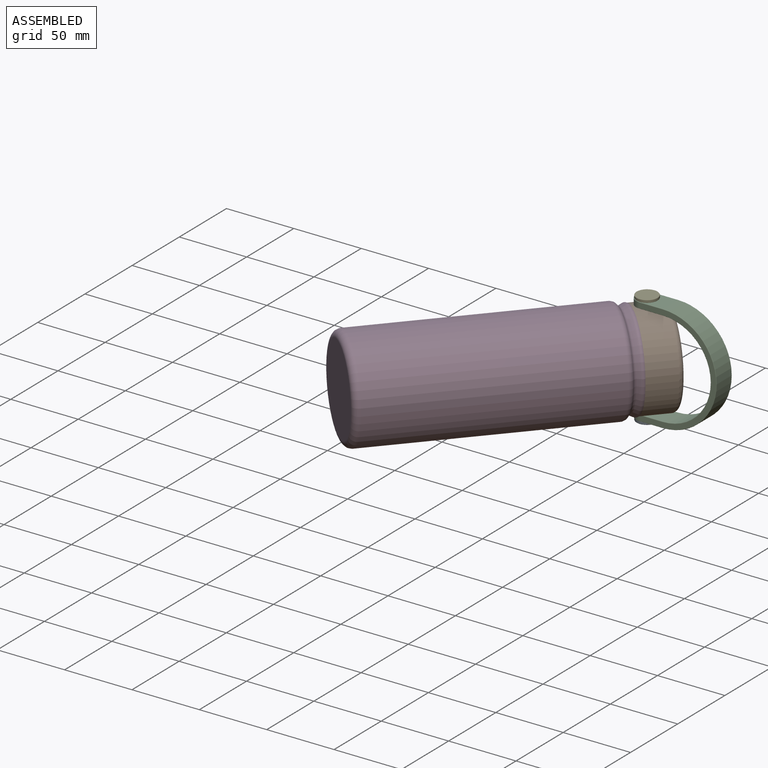
[diagram: assembled view]
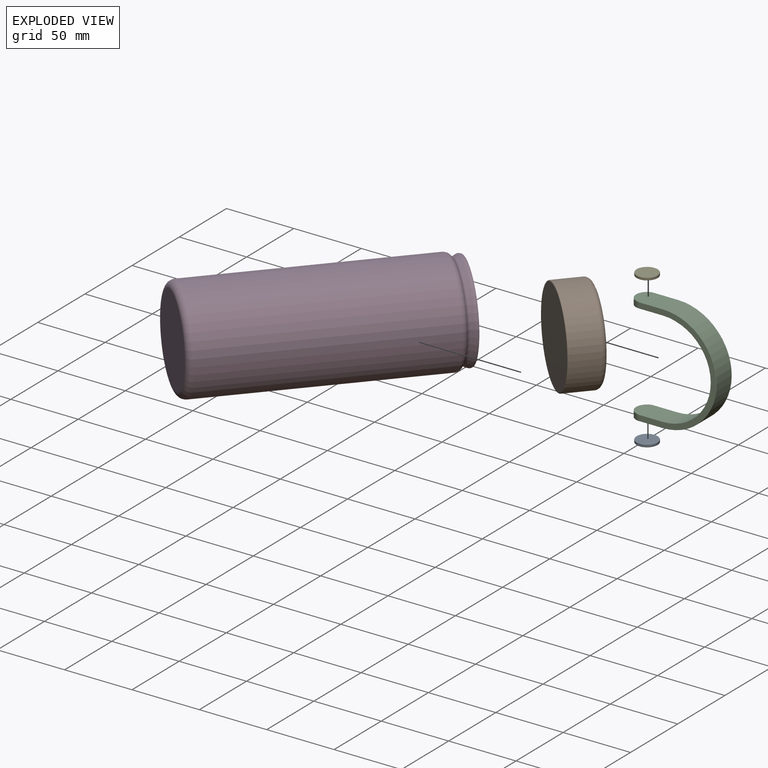
[diagram: exploded view]
GUIDED TOUR — MATED ASSEMBLY (Onshape document 536355092539ef50fb7ec794, AutoMate assembly 536355092539ef50fb7ec794_3096c0ffa2b40792f3d7c45c_285c7d49eede070ba3ad43be_default)

This assembly has 5 components, labeled P0..P4 below (a component is one placed occurrence of a part; the same part can appear more than once), held together by 3 mates. A mate is a constraint between two components; its type names the relative motion it leaves free:
  FASTENED — locks the two components together rigidly (no relative motion).
Axis/direction vectors are unit vectors and 'through' points are millimeter coordinates, both in the assembly's world frame.

MATES
  1. FASTENED "Fastened 3": P0 <-> P2, direction (0.000, 0.000, 1.000) through (-216.31, -173.49, 301.89) mm
  2. FASTENED "Fastened 1": P1 <-> P3, direction (-0.663, -0.749, 0.001) through (-220.74, -182.99, 342.62) mm
  3. FASTENED "Fastened 2": P4 <-> P2, direction (0.000, 0.000, -1.000) through (-216.31, -173.49, 381.80) mm

ASSEMBLY ORDER
  1. P2 — the base component [order verified]
  2. P1 [order verified]
  3. P3 [order verified]
  4. P4 [order verified]
  5. P0 [order verified]
Order-tag legend:
  [order verified] — this step's position reverses a verified removal order: the component was checked to insert without passing through the ones already placed.

Of the 5 components, 4 carry the full construction recipe — the FeatureScript program that regenerates the part's solid from scratch; the rest are supplied as boundary geometry only.
Each toured component is shown spotlighted twice — in the assembled view, then in the exploded view, where a leader line traces a displaced component back to its assembled socket (saturated green if recipe-attached, orange if geometry-only; every other component desaturated gray) — followed by its recipe or geometry summary and the mates that hold it.
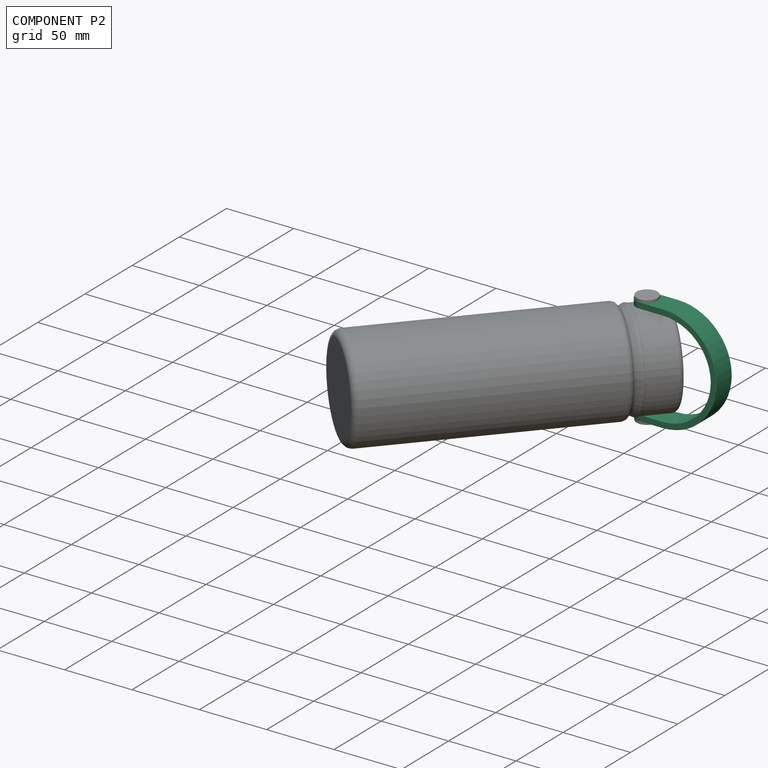
[diagram: component P2 — assembled]
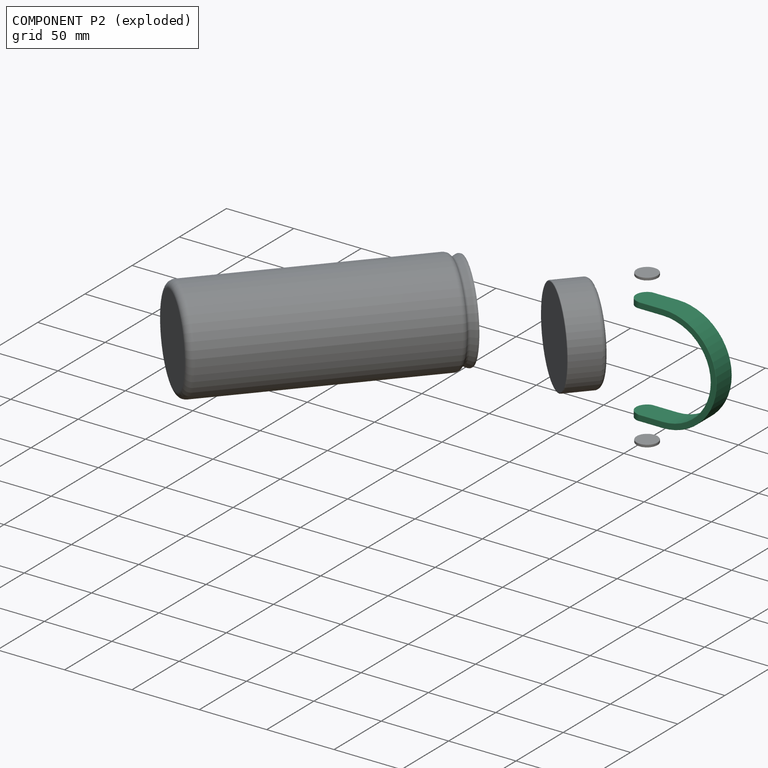
[diagram: component P2 — exploded]
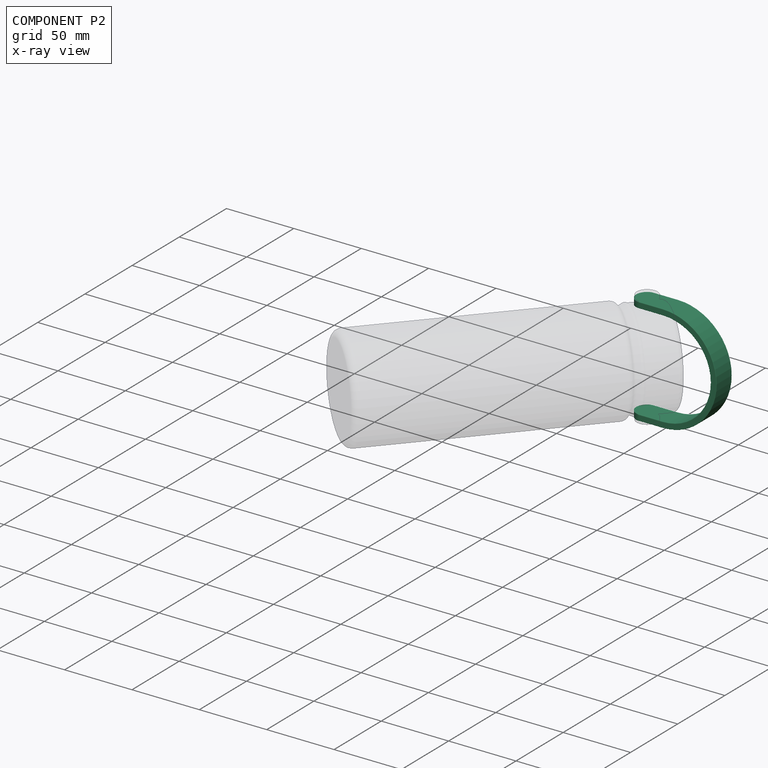
[diagram: component P2 — x-ray view]
COMPONENT P2 — recipe-attached (CADFS 00189424, mesh-verified: the recipe's output STEP matches this component's geometry to below the mesh-comparison resolution (tessellation chordal tolerance ~0.157 mm)).
Held by: FASTENED mate "Fastened 3" to P0; FASTENED mate "Fastened 2" to P4.
Construction recipe (FeatureScript — the CAD program that rebuilds this solid; sketch coordinates are in the units given by the * unit suffixes, e.g. mm):

FeatureScript 1511;
import(path : "onshape/std/geometry.fs", version : "1511.0");
import(path : "onshape/std/common.fs", version : "1511.0");
const mm = millimeter;
const VERTEX = EntityType.VERTEX;
const EDGE = EntityType.EDGE;
const FACE = EntityType.FACE;
const BODY = EntityType.BODY;
function v(x, y){return vector(x, y);}
function OD(order){return orderDisambiguation(order);}
function OSD(set){return originalSetDisambiguation(set);}
function TD(topology){return topologyDisambiguation(topology);}
function TDD(query){return trueDependencyDisambiguation(query);}
function sQuery(a, b, c) {return sketchEntityQuery(a, b, c);}

annotation { "Feature Type Name" : "Feature", "Feature Type Description" : "" }
export const myFeature = defineFeature(function(context is Context, id is Id, definition is map)
    precondition{}
    {
        {
            var Q0;
            Q0=qCreatedBy(makeId("Front.planeOp"),FACE);
            var sketch = newSketch(context, id + "F0", { "sketchPlane" : qUnion([Q0])});
            skArc(sketch, "E0", {"start": v(79.9, 0) * mm, "mid": v(39.95, 39.95) * mm, "end": v(0, 0) * mm});
            skArc(sketch, "E1", {"start": v(75.51, 0) * mm, "mid": v(39.95, 35.56) * mm, "end": v(4.4, 0) * mm});
            skLineSegment(sketch, "E2", {"start": v(4.4, 0) * mm, "end": v(0, 0) * mm});
            skLineSegment(sketch, "E3", {"start": v(75.51, 0) * mm, "end": v(79.9, 0) * mm});
            skSolve(sketch);
        }
        {
            var Q0;
            Q0 = qSketchRegion(id + "F0", true);
            extrude(context, id + "F1", {"entities" : qUnion([Q0]), "depth" : 16.28 * mm});
        }
        {
            var Q0;
            Q0=makeQuery(id+"F1.opExtrude","CAP_EDGE",EDGE,{"disambiguationData":[OSD([sQuery(id+"F0.wireOp",EDGE,"E0")])],"isStart":false});
            var Q1;
            Q1=makeQuery(id+"F1.opExtrude","CAP_EDGE",EDGE,{"disambiguationData":[OSD([sQuery(id+"F0.wireOp",EDGE,"E1")])],"isStart":false});
            var Q2;
            Q2=makeQuery(id+"F1.opExtrude","CAP_EDGE",EDGE,{"disambiguationData":[OSD([sQuery(id+"F0.wireOp",EDGE,"E0")])],"isStart":true});
            var Q3;
            Q3=makeQuery(id+"F1.opExtrude","CAP_EDGE",EDGE,{"disambiguationData":[OSD([sQuery(id+"F0.wireOp",EDGE,"E1")])],"isStart":true});
            fillet(context, id + "F2", {"entities" : qUnion([Q0, Q1, Q2, Q3]), "radius" : 0.25 * mm, "tangentPropagation" : true, "allowEdgeOverflow" : false});
        }
        {
            var Q0;
            Q0=makeQuery(id+"F1.opExtrude","SWEPT_FACE",FACE,{"disambiguationData":[OSD([sQuery(id+"F0.wireOp",EDGE,"E2")])]});
            var sketch = newSketch(context, id + "F3", { "sketchPlane" : qUnion([Q0])});
            skLineSegment(sketch, "E4.0.0", {"start": v(0, 16.03) * mm, "end": v(0, 0.25) * mm});
            skArc(sketch, "E4.0.1", {"start": v(0, 0.25) * mm, "mid": v(0.07, 0.07) * mm, "end": v(0.25, 0) * mm});
            skLineSegment(sketch, "E4.0.2", {"start": v(0.25, 0) * mm, "end": v(4.14, 0) * mm});
            skArc(sketch, "E4.0.3", {"start": v(4.14, 0) * mm, "mid": v(4.32, 0.07) * mm, "end": v(4.4, 0.25) * mm});
            skLineSegment(sketch, "E4.0.4", {"start": v(4.4, 0.25) * mm, "end": v(4.4, 16.03) * mm});
            skArc(sketch, "E4.0.5", {"start": v(4.4, 16.03) * mm, "mid": v(4.32, 16.2) * mm, "end": v(4.14, 16.28) * mm});
            skLineSegment(sketch, "E4.0.6", {"start": v(4.14, 16.28) * mm, "end": v(0.25, 16.28) * mm});
            skArc(sketch, "E4.0.7", {"start": v(0.25, 16.28) * mm, "mid": v(0.07, 16.2) * mm, "end": v(0, 16.03) * mm});
            skLineSegment(sketch, "E5.0.0", {"start": v(75.77, 0) * mm, "end": v(79.65, 0) * mm});
            skArc(sketch, "E5.0.1", {"start": v(79.65, 0) * mm, "mid": v(79.83, 0.07) * mm, "end": v(79.9, 0.25) * mm});
            skLineSegment(sketch, "E5.0.2", {"start": v(79.9, 0.25) * mm, "end": v(79.9, 16.03) * mm});
            skArc(sketch, "E5.0.3", {"start": v(79.9, 16.03) * mm, "mid": v(79.83, 16.2) * mm, "end": v(79.65, 16.28) * mm});
            skLineSegment(sketch, "E5.0.4", {"start": v(79.65, 16.28) * mm, "end": v(75.77, 16.28) * mm});
            skArc(sketch, "E5.0.5", {"start": v(75.77, 16.28) * mm, "mid": v(75.59, 16.2) * mm, "end": v(75.51, 16.03) * mm});
            skLineSegment(sketch, "E5.0.6", {"start": v(75.51, 16.03) * mm, "end": v(75.51, 0.25) * mm});
            skArc(sketch, "E5.0.7", {"start": v(75.51, 0.25) * mm, "mid": v(75.59, 0.07) * mm, "end": v(75.77, 0) * mm});
            skSolve(sketch);
        }
        {
            var Q0;
            Q0 = qSketchRegion(id + "F3", true);
            extrude(context, id + "F4", {"entities" : qUnion([Q0]), "operationType" : NewBodyOperationType.ADD, "depth" : 25.4 * mm});
        }
        {
            var Q0;
            Q0=makeQuery(id+"F4.opExtrude","SWEPT_FACE",FACE,{"disambiguationData":[OSD([sQuery(id+"F3.wireOp",EDGE,"E4.0.0")])]});
            var sketch = newSketch(context, id + "F5", { "sketchPlane" : qUnion([Q0])});
            skArc(sketch, "E6", {"start": v(0, -17.26) * mm, "mid": v(8.14, -25.4) * mm, "end": v(16.28, -17.26) * mm});
            skLineSegment(sketch, "E7", {"start": v(16.28, -17.26) * mm, "end": v(0, -17.26) * mm, "construction": true});
            skLineSegment(sketch, "E8", {"start": v(16.28, -17.26) * mm, "end": v(16.28, -26.57) * mm});
            skLineSegment(sketch, "E9", {"start": v(16.28, -26.57) * mm, "end": v(0, -26.57) * mm});
            skLineSegment(sketch, "E10", {"start": v(0, -26.57) * mm, "end": v(0, -17.26) * mm});
            skSolve(sketch);
        }
        {
            var Q0;
            Q0 = qSketchRegion(id + "F5", true);
            extrude(context, id + "F6", {"entities" : qUnion([Q0]), "operationType" : NewBodyOperationType.REMOVE, "endBound" : BoundingType.THROUGH_ALL, "oppositeDirection" : true, "depth" : 25.4 * mm});
        }
    });
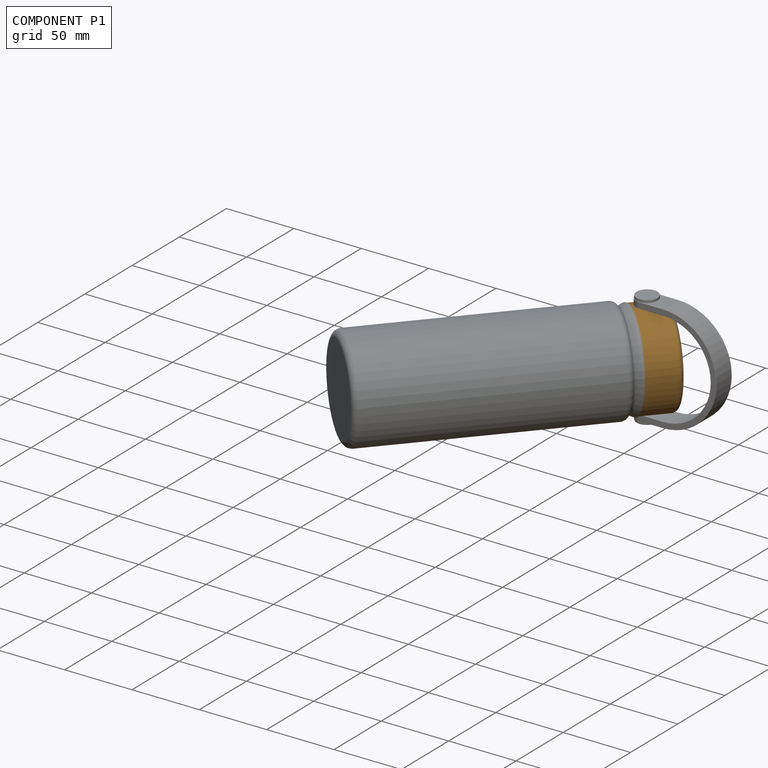
[diagram: component P1 — assembled]
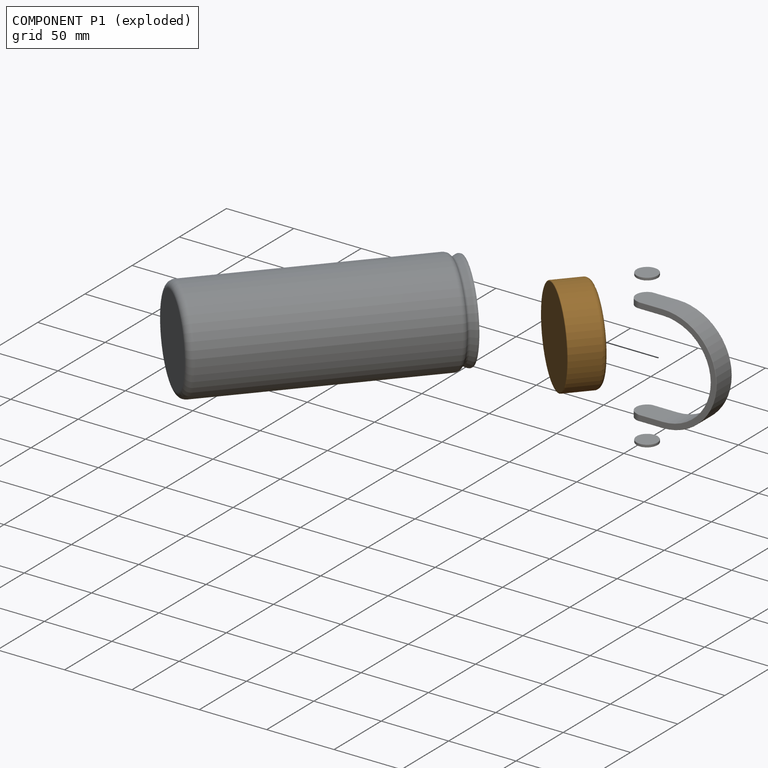
[diagram: component P1 — exploded]
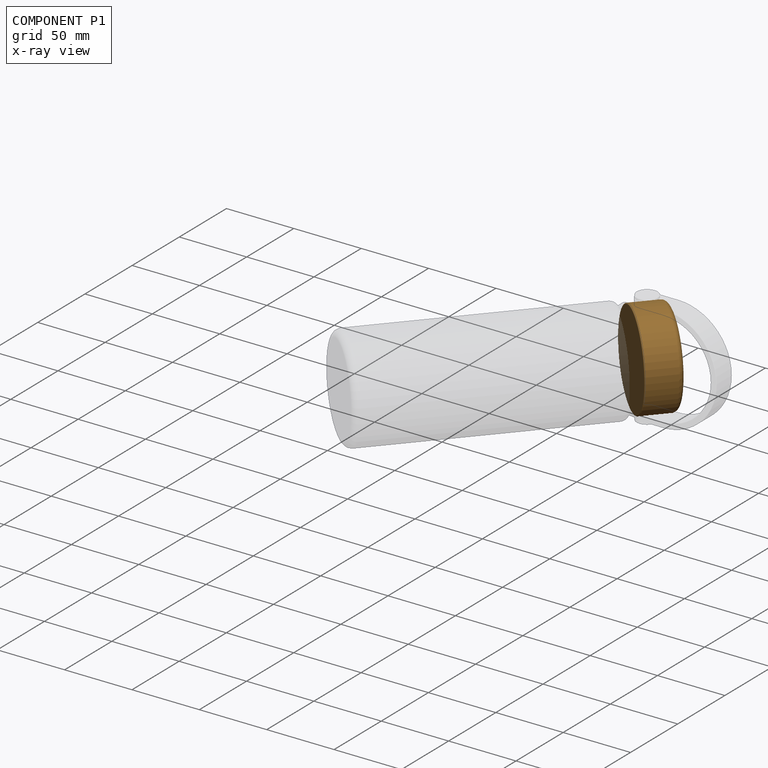
[diagram: component P1 — x-ray view]
COMPONENT P1 — geometry summary (no construction recipe available for this part):
  bounding box: 75.4 x 75.4 x 25.4 mm
  B-rep topology: 1 solid, 7 faces, 24 edges
  volume: 92130 mm^3 (64% of its bounding box)
  symmetry: revolution-symmetric about the z axis through its bounding-box center; mirror-symmetric across its x mid-plane, y mid-plane
Held by: FASTENED mate "Fastened 1" to P3.
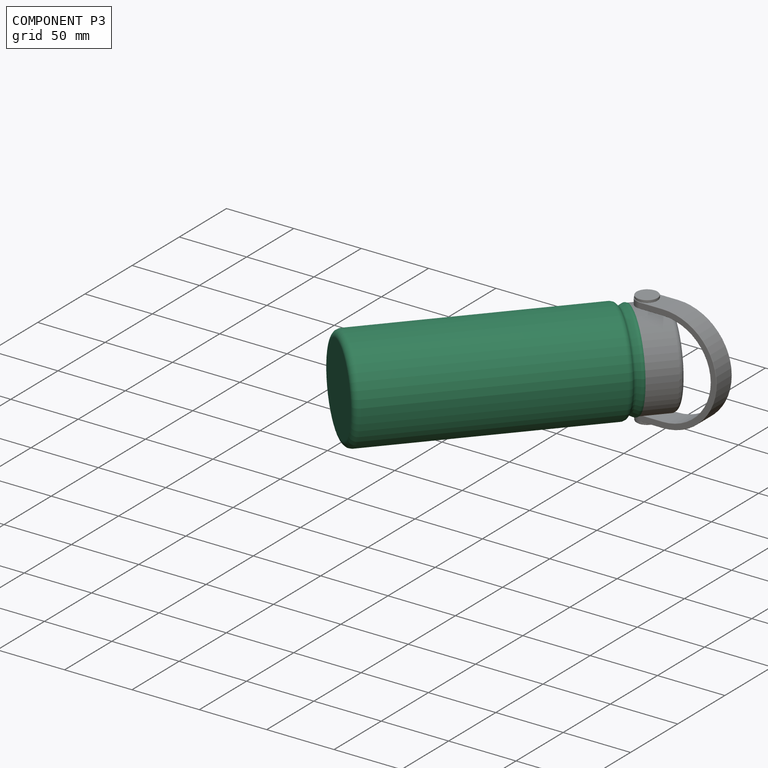
[diagram: component P3 — assembled]
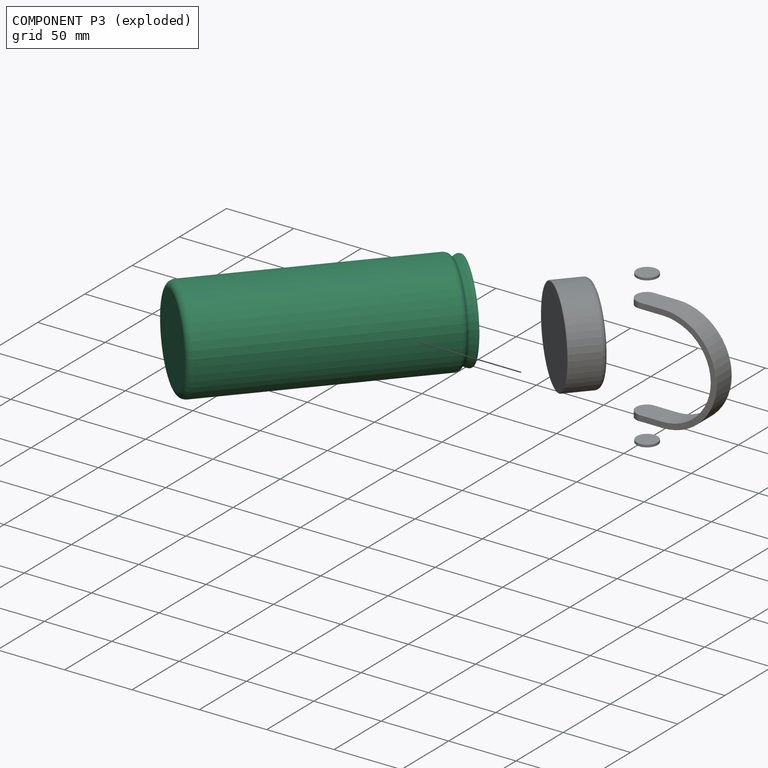
[diagram: component P3 — exploded]
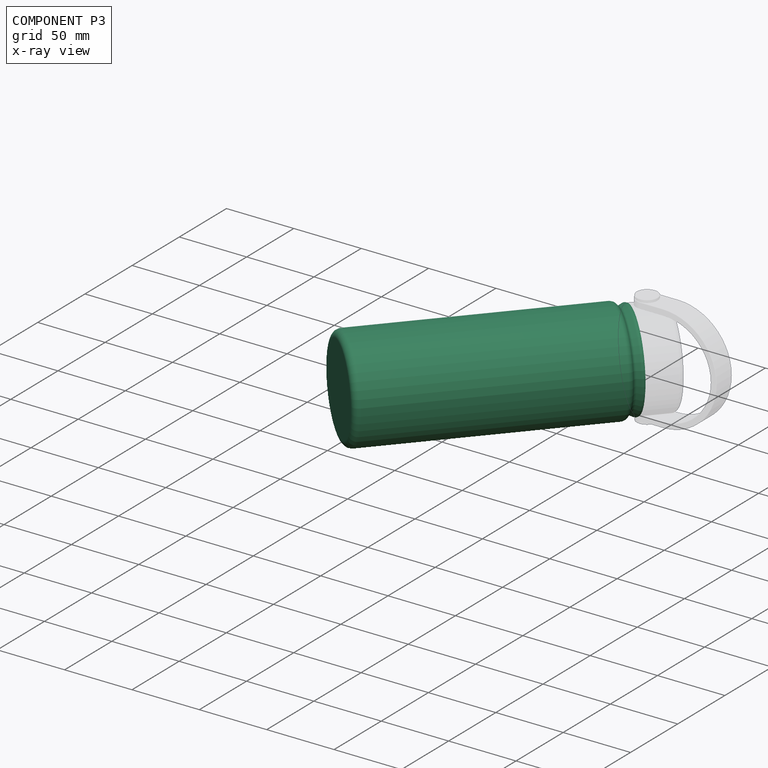
[diagram: component P3 — x-ray view]
COMPONENT P3 — recipe-attached (CADFS 00189416, mesh-verified: the recipe's output STEP matches this component's geometry to below the mesh-comparison resolution (tessellation chordal tolerance ~0.317 mm)).
Held by: FASTENED mate "Fastened 1" to P1.
Construction recipe (FeatureScript — the CAD program that rebuilds this solid; sketch coordinates are in the units given by the * unit suffixes, e.g. mm):

FeatureScript 1511;
import(path : "onshape/std/geometry.fs", version : "1511.0");
import(path : "onshape/std/common.fs", version : "1511.0");
const mm = millimeter;
const VERTEX = EntityType.VERTEX;
const EDGE = EntityType.EDGE;
const FACE = EntityType.FACE;
const BODY = EntityType.BODY;
function v(x, y){return vector(x, y);}
function OD(order){return orderDisambiguation(order);}
function OSD(set){return originalSetDisambiguation(set);}
function TD(topology){return topologyDisambiguation(topology);}
function TDD(query){return trueDependencyDisambiguation(query);}
function sQuery(a, b, c) {return sketchEntityQuery(a, b, c);}

annotation { "Feature Type Name" : "Feature", "Feature Type Description" : "" }
export const myFeature = defineFeature(function(context is Context, id is Id, definition is map)
    precondition{}
    {
        {
            var Q0;
            Q0=qCreatedBy(makeId("Top.planeOp"),FACE);
            var sketch = newSketch(context, id + "F0", { "sketchPlane" : qUnion([Q0])});
            skCircle(sketch, "E0", {"center": v(0, 0) * mm, "radius": 36.96 * mm});
            skSolve(sketch);
        }
        {
            var Q0;
            Q0 = qSketchRegion(id + "F0", true);
            extrude(context, id + "F1", {"entities" : qUnion([Q0]), "depth" : 172.44 * mm});
        }
        {
            var Q0;
            Q0=qCreatedBy(makeId("Front.planeOp"),FACE);
            var sketch = newSketch(context, id + "F2", { "sketchPlane" : qUnion([Q0])});
            skArc(sketch, "E1", {"start": v(36.96, 172.44) * mm, "mid": v(36.42, 174.5) * mm, "end": v(34.94, 176.03) * mm});
            skArc(sketch, "E2", {"start": v(33.5, 178.18) * mm, "mid": v(33.98, 176.94) * mm, "end": v(34.94, 176.03) * mm});
            skLineSegment(sketch, "E3", {"start": v(33.5, 178.18) * mm, "end": v(34.94, 180.92) * mm});
            skArc(sketch, "E4", {"start": v(34.94, 180.92) * mm, "mid": v(35.25, 182.2) * mm, "end": v(34.94, 183.46) * mm});
            skPoint(sketch, "E5", {"position": v(35.25, 182.2) * mm});
            skPoint(sketch, "E6", {"position": v(33.98, 176.94) * mm});
            skLineSegment(sketch, "E7", {"start": v(34.94, 183.46) * mm, "end": v(0, 183.46) * mm});
            skLineSegment(sketch, "E8", {"start": v(0, 183.46) * mm, "end": v(0, 172.44) * mm});
            skLineSegment(sketch, "E9", {"start": v(0, 172.44) * mm, "end": v(36.96, 172.44) * mm});
            skSolve(sketch);
        }
        {
            var Q0;
            Q0 = qSketchRegion(id + "F2", true);
            var Q1;
            Q1=sQuery(id+"F2.wireOp",EDGE,"E8");
            revolve(context, id + "F3", {"operationType" : NewBodyOperationType.ADD, "entities" : qUnion([Q0]), "axis" : qUnion([Q1]), "revolveType" : RevolveType.FULL});
        }
        {
            var Q0;
            Q0=makeQuery(id+"F1.opExtrude","CAP_EDGE",EDGE,{"disambiguationData":[OSD([sQuery(id+"F0.wireOp",EDGE,"E0")])],"isStart":true});
            fillet(context, id + "F4", {"entities" : qUnion([Q0]), "radius" : 5.08 * mm, "tangentPropagation" : true, "allowEdgeOverflow" : false});
        }
    });
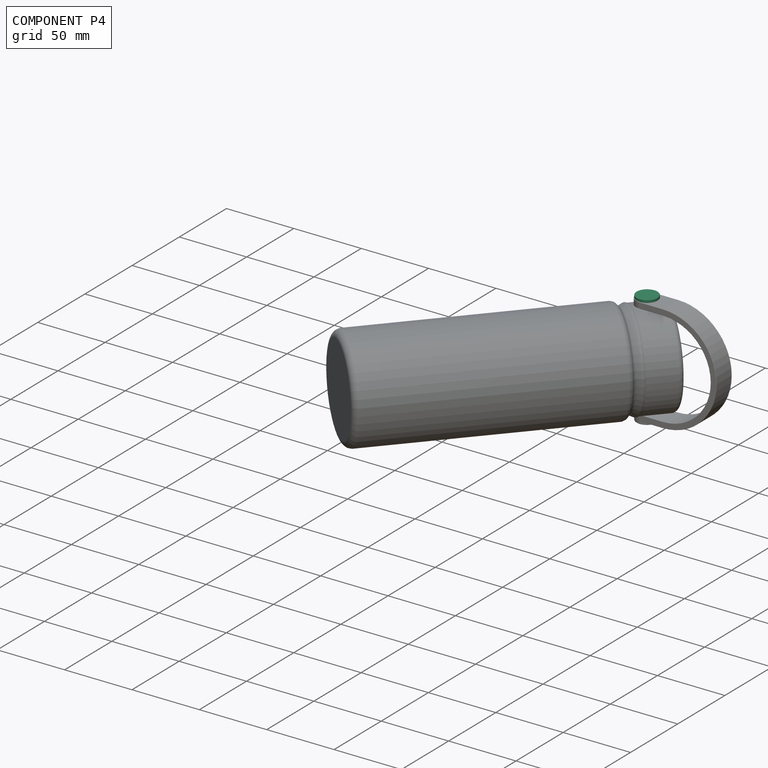
[diagram: component P4 — assembled]
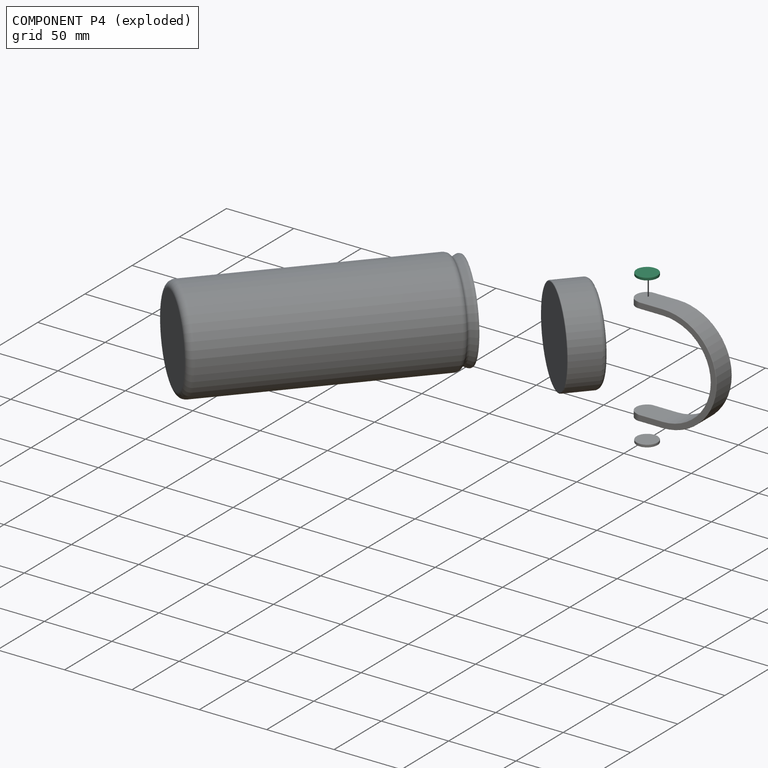
[diagram: component P4 — exploded]
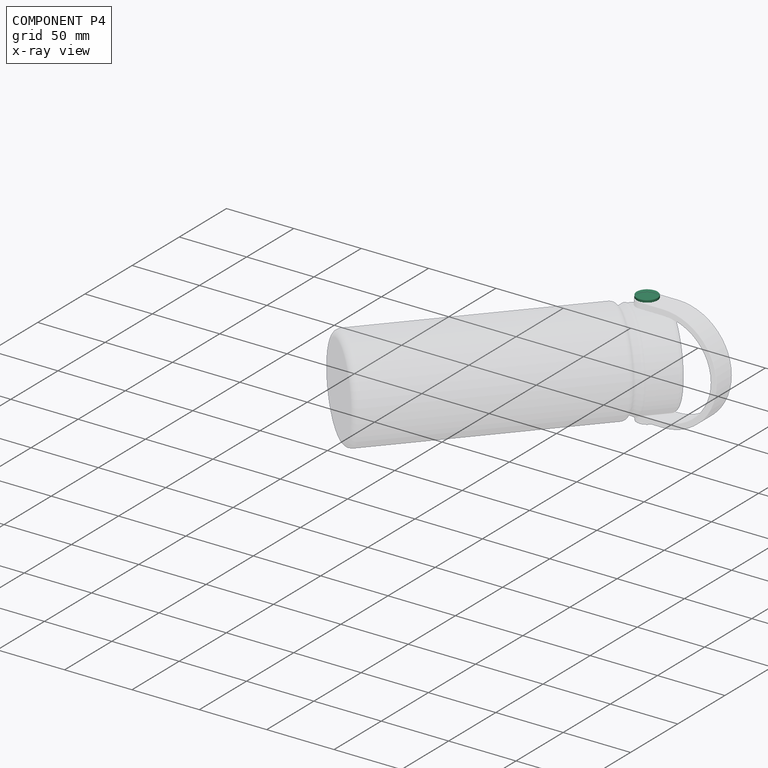
[diagram: component P4 — x-ray view]
COMPONENT P4 — same part as P0 (CADFS 00189425); its construction recipe is shown at P0.
Held by: FASTENED mate "Fastened 2" to P2.
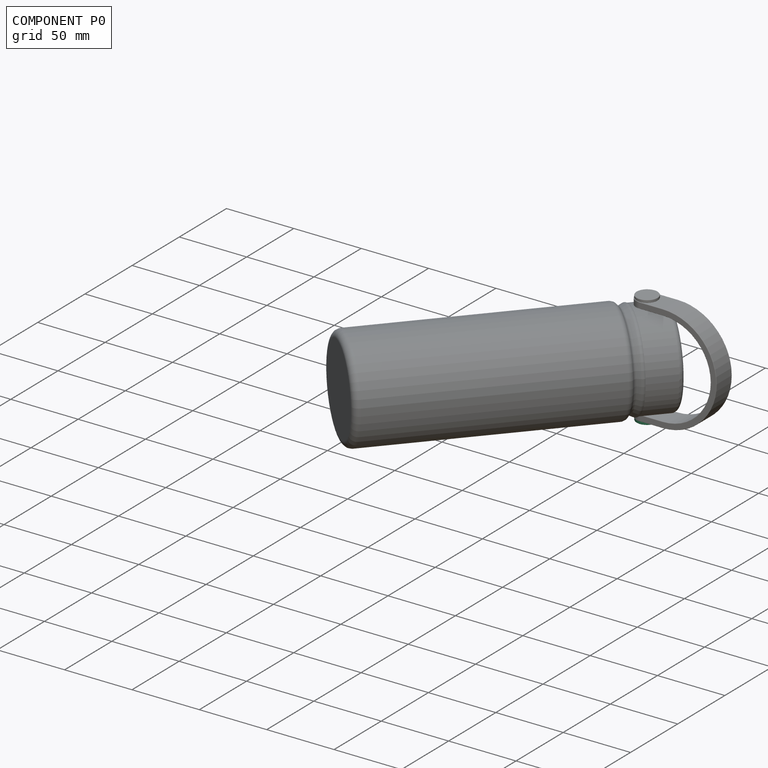
[diagram: component P0 — assembled]
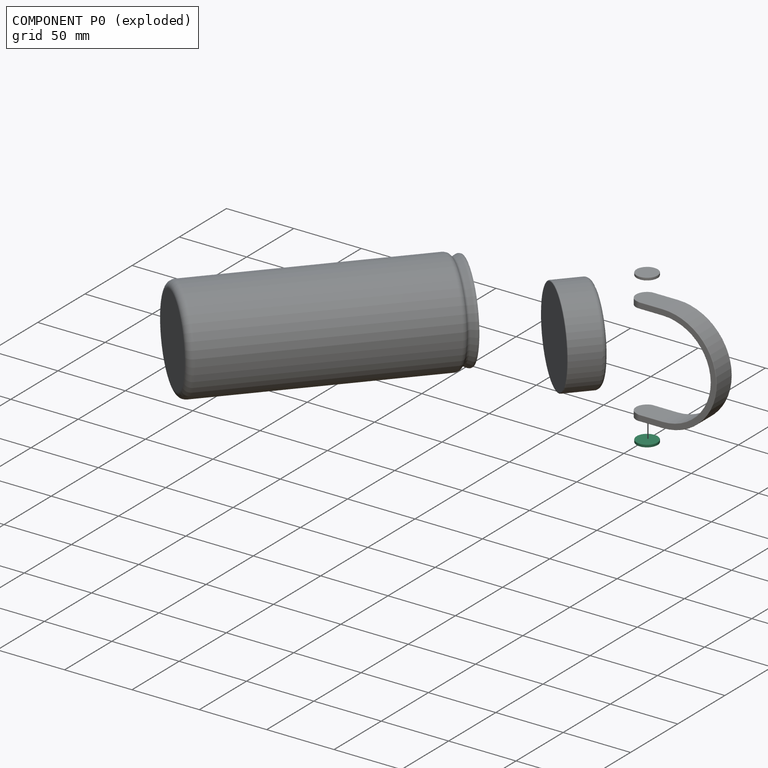
[diagram: component P0 — exploded]
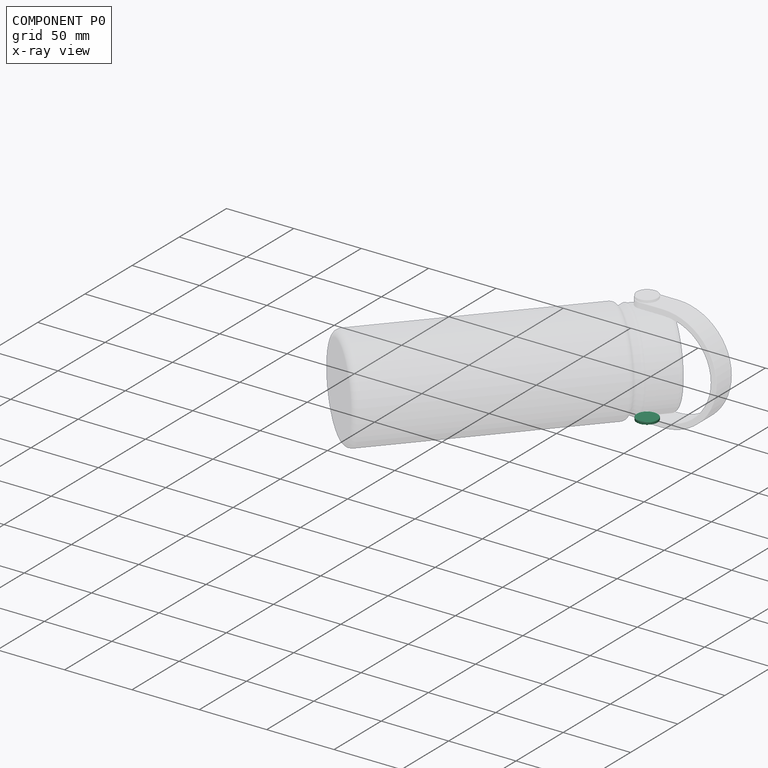
[diagram: component P0 — x-ray view]
COMPONENT P0 — recipe-attached (CADFS 00189425, mesh-verified: the recipe's output STEP matches this component's geometry to below the mesh-comparison resolution (tessellation chordal tolerance ~0.0333 mm)).
Held by: FASTENED mate "Fastened 3" to P2.
Construction recipe (FeatureScript — the CAD program that rebuilds this solid; sketch coordinates are in the units given by the * unit suffixes, e.g. mm):

FeatureScript 1511;
import(path : "onshape/std/geometry.fs", version : "1511.0");
import(path : "onshape/std/common.fs", version : "1511.0");
const mm = millimeter;
const VERTEX = EntityType.VERTEX;
const EDGE = EntityType.EDGE;
const FACE = EntityType.FACE;
const BODY = EntityType.BODY;
function v(x, y){return vector(x, y);}
function OD(order){return orderDisambiguation(order);}
function OSD(set){return originalSetDisambiguation(set);}
function TD(topology){return topologyDisambiguation(topology);}
function TDD(query){return trueDependencyDisambiguation(query);}
function sQuery(a, b, c) {return sketchEntityQuery(a, b, c);}

annotation { "Feature Type Name" : "Feature", "Feature Type Description" : "" }
export const myFeature = defineFeature(function(context is Context, id is Id, definition is map)
    precondition{}
    {
        {
            var Q0;
            Q0=qCreatedBy(makeId("Front.planeOp"),FACE);
            var sketch = newSketch(context, id + "F0", { "sketchPlane" : qUnion([Q0])});
            skCircle(sketch, "E0", {"center": v(0, 0) * mm, "radius": 7.82 * mm});
            skSolve(sketch);
        }
        {
            var Q0;
            Q0 = qSketchRegion(id + "F0", true);
            extrude(context, id + "F1", {"entities" : qUnion([Q0]), "depth" : 2 * mm});
        }
        {
            var Q0;
            Q0=makeQuery(id+"F1.opExtrude","CAP_EDGE",EDGE,{"disambiguationData":[OSD([sQuery(id+"F0.wireOp",EDGE,"E0")])],"isStart":false});
            var Q1;
            Q1=makeQuery(id+"F1.opExtrude","CAP_EDGE",EDGE,{"disambiguationData":[OSD([sQuery(id+"F0.wireOp",EDGE,"E0")])],"isStart":true});
            fillet(context, id + "F2", {"entities" : qUnion([Q0, Q1]), "radius" : 0.25 * mm, "tangentPropagation" : true, "allowEdgeOverflow" : false});
        }
    });
PROVENANCE & LICENSES
Assembly (occurrences, transforms, mates, per-part STEP geometry): AutoMate dataset, Zenodo record 7776208, CC0.
Construction recipes: CADFS (HuggingFace VladPyatov/CADFS, CC-BY-4.0, layered over the ABC dataset), FeatureScript reconstruction programs keyed by ABC model id.
Join: ABC meta listings map ABC model id -> Onshape documentId; within a shared document, parts are matched by geometric signature (bounding-box dims + volume at 0.1% relative tolerance, exact B-rep face/solid counts).
Verification: 4 of this assembly's 5 components carry a recipe attachment, and every attachment is mesh-verified: the CADFS STEP and the AutoMate member STEP were compared as meshes in their shared local frame (symmetric sampled-point-to-mesh distance); worst across the 4 attachments: below the mesh-comparison resolution (tessellation chordal tolerance ~0.317 mm) on a 211 mm part.
Renders: orthographic iso camera (az 35 / el 25); the floor grid conveys scale (grid pitch printed in each image; no ruler). In the exploded view each component is displaced by its stored offset vector: the offsets alone carry the explosion direction (mate normal/axis signs are not orientation cues and do not encode it), and separation distances are assigned per mate-chain, not proportionally to assembly-order depth.
